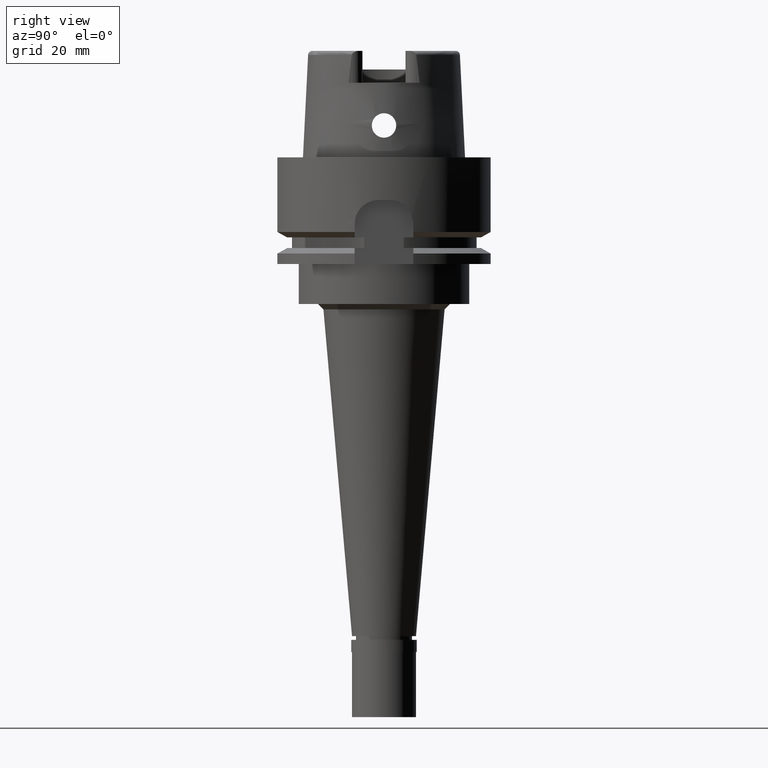
[diagram: clean part render]
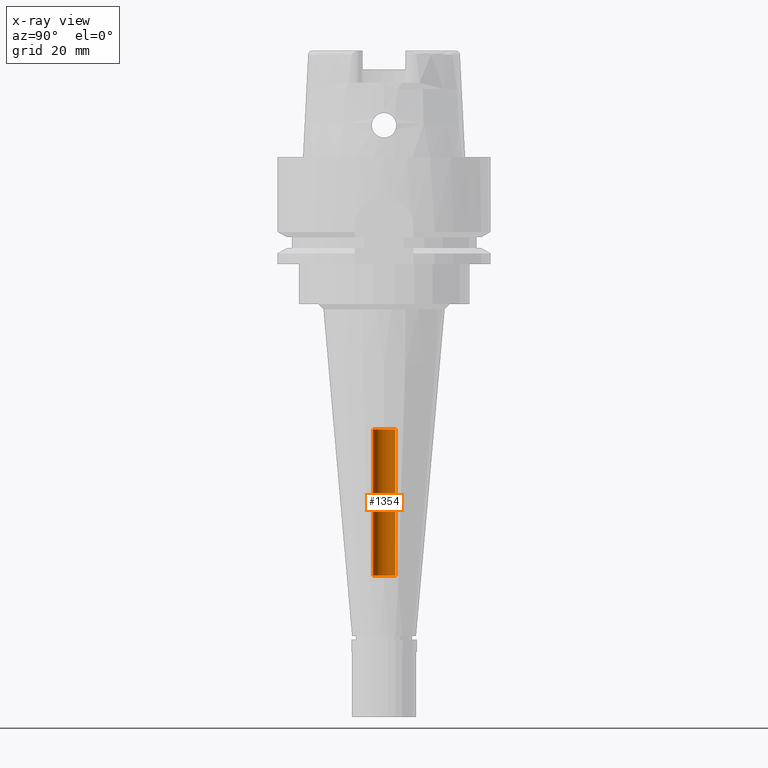
[diagram: x-ray — body ghosted, one internal face saturated and labeled with its STEP entity id]
A machine part, right view, then the same camera in x-ray: the body is ghosted and one INTERNAL B-rep face — a face not visible from any outside direction — is saturated and labeled: STEP entity #1354.
In plain terms, the highlighted cylindrical surface (edge-blend (fillet) strip) has radius 2.1 mm, axis along (0, 0, -1).
Its self-contained STEP definition (entity closure, byte-faithful):
#35 = VERTEX_POINT ( 'NONE', #4760 ) ;
#114 = ORIENTED_EDGE ( 'NONE', *, *, #971, .T. ) ;
#205 = LINE ( 'NONE', #2949, #1777 ) ;
#465 = AXIS2_PLACEMENT_3D ( 'NONE', #3474, #3100, #4691 ) ;
#908 = DIRECTION ( 'NONE',  ( 0.0000000000000000000, 0.0000000000000000000, 1.000000000000000000 ) ) ;
#932 = ORIENTED_EDGE ( 'NONE', *, *, #1883, .F. ) ;
#971 = EDGE_CURVE ( 'NONE', #2834, #3905, #2493, .T. ) ;
#1120 = DIRECTION ( 'NONE',  ( 0.0000000000000000000, 0.0000000000000000000, -1.000000000000000000 ) ) ;
#1354 = ADVANCED_FACE ( 'NONE', ( #2307 ), #3027, .F. ) ;
#1460 = EDGE_CURVE ( 'NONE', #1616, #35, #2401, .T. ) ;
#1471 = DIRECTION ( 'NONE',  ( 0.0000000000000000000, 0.0000000000000000000, 1.000000000000000000 ) ) ;
#1616 = VERTEX_POINT ( 'NONE', #3824 ) ;
#1632 = CARTESIAN_POINT ( 'NONE',  ( 0.0000000000000000000, 2.100000000000000089, -51.00000000000000000 ) ) ;
#1692 = ORIENTED_EDGE ( 'NONE', *, *, #1460, .T. ) ;
#1705 = EDGE_LOOP ( 'NONE', ( #114, #932, #1692, #4900 ) ) ;
#1777 = VECTOR ( 'NONE', #908, 1000.000000000000000 ) ;
#1883 = EDGE_CURVE ( 'NONE', #1616, #3905, #1934, .T. ) ;
#1934 = LINE ( 'NONE', #5098, #4787 ) ;
#2158 = AXIS2_PLACEMENT_3D ( 'NONE', #2550, #2952, #4570 ) ;
#2307 = FACE_OUTER_BOUND ( 'NONE', #1705, .T. ) ;
#2401 = CIRCLE ( 'NONE', #3257, 2.100000000000000089 ) ;
#2493 = CIRCLE ( 'NONE', #2158, 2.100000000000000089 ) ;
#2550 = CARTESIAN_POINT ( 'NONE',  ( 0.0000000000000000000, 1.543667290324999758E-14, -51.00000000000000000 ) ) ;
#2726 = DIRECTION ( 'NONE',  ( 0.0000000000000000000, -1.000000000000000000, 0.0000000000000000000 ) ) ;
#2834 = VERTEX_POINT ( 'NONE', #1632 ) ;
#2949 = CARTESIAN_POINT ( 'NONE',  ( 0.0000000000000000000, 2.100000000000000089, -78.50000000000000000 ) ) ;
#2952 = DIRECTION ( 'NONE',  ( 0.0000000000000000000, 0.0000000000000000000, 1.000000000000000000 ) ) ;
#3027 = CYLINDRICAL_SURFACE ( 'NONE', #465, 2.100000000000000089 ) ;
#3100 = DIRECTION ( 'NONE',  ( 0.0000000000000000000, 0.0000000000000000000, -1.000000000000000000 ) ) ;
#3257 = AXIS2_PLACEMENT_3D ( 'NONE', #4744, #1120, #2726 ) ;
#3474 = CARTESIAN_POINT ( 'NONE',  ( 0.0000000000000000000, 1.543667290324999758E-14, 26.05000000000000071 ) ) ;
#3824 = CARTESIAN_POINT ( 'NONE',  ( 0.0000000000000000000, -2.100000000000000089, -78.50000000000000000 ) ) ;
#3905 = VERTEX_POINT ( 'NONE', #4837 ) ;
#4461 = EDGE_CURVE ( 'NONE', #35, #2834, #205, .T. ) ;
#4570 = DIRECTION ( 'NONE',  ( 0.0000000000000000000, 1.000000000000000000, 0.0000000000000000000 ) ) ;
#4691 = DIRECTION ( 'NONE',  ( 0.0000000000000000000, -1.000000000000000000, 0.0000000000000000000 ) ) ;
#4744 = CARTESIAN_POINT ( 'NONE',  ( 0.0000000000000000000, 1.543667290324999758E-14, -78.50000000000000000 ) ) ;
#4760 = CARTESIAN_POINT ( 'NONE',  ( 0.0000000000000000000, 2.100000000000000089, -78.50000000000000000 ) ) ;
#4787 = VECTOR ( 'NONE', #1471, 1000.000000000000000 ) ;
#4837 = CARTESIAN_POINT ( 'NONE',  ( 0.0000000000000000000, -2.100000000000000089, -51.00000000000000000 ) ) ;
#4900 = ORIENTED_EDGE ( 'NONE', *, *, #4461, .T. ) ;
#5098 = CARTESIAN_POINT ( 'NONE',  ( 0.0000000000000000000, -2.100000000000000089, -78.50000000000000000 ) ) ;